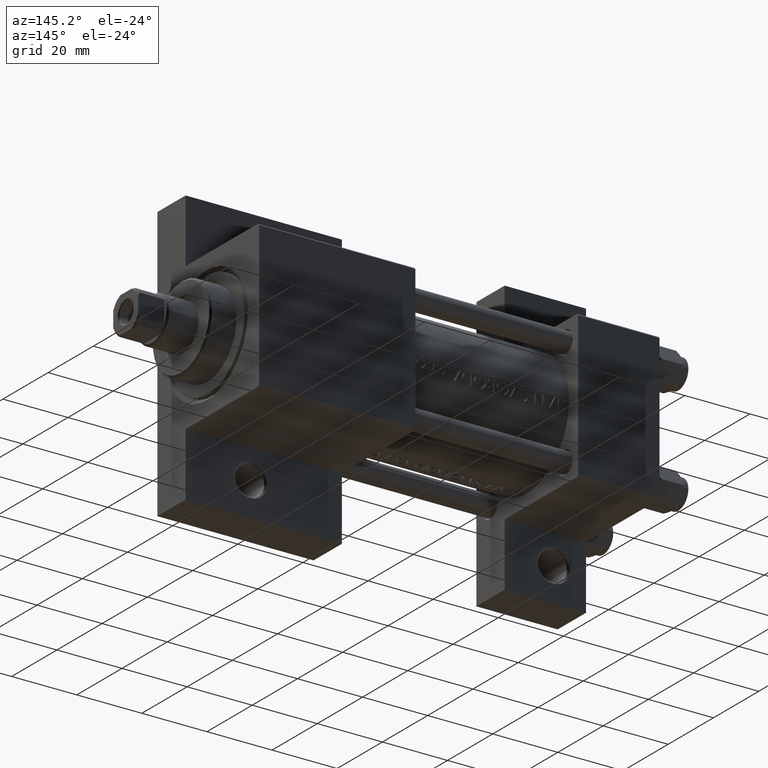
[diagram: clean part render]
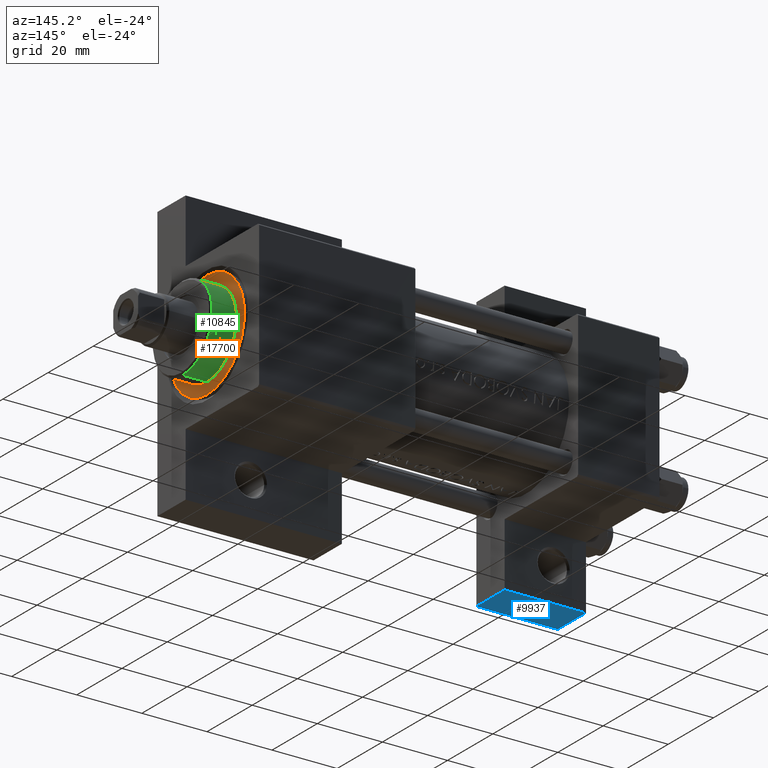
[diagram: same view with three faces highlighted in distinct colors, each labeled with its STEP entity id]
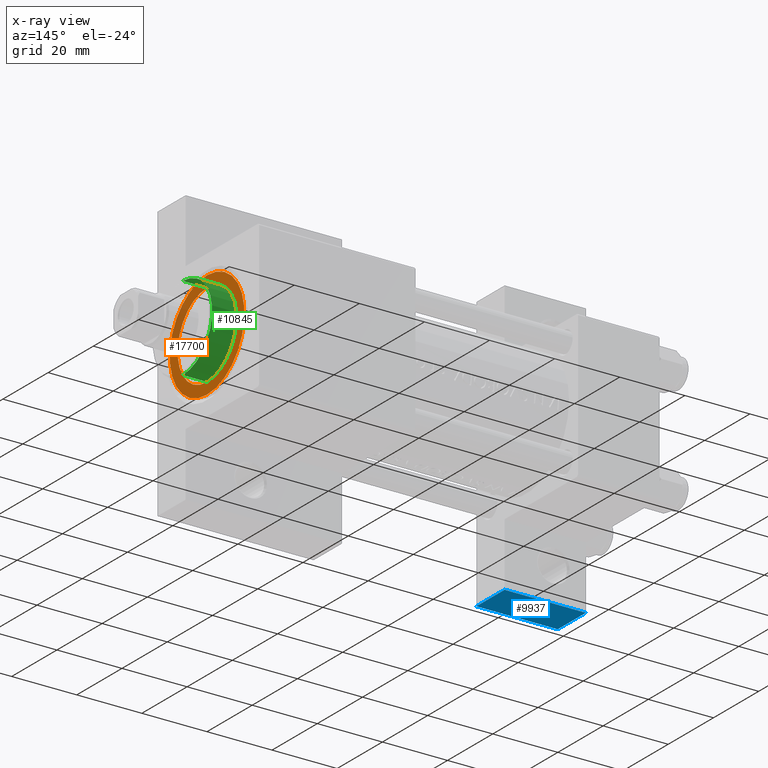
[diagram: x-ray of the same camera — body ghosted, the three highlighted faces saturated]
A machine part, auxiliary view with three faces highlighted in distinct colors.
The next image is the same camera in x-ray (body ghosted, the three faces saturated) — at least one of them is partly hidden behind the body in this view.
Their STEP definitions:

[orange] entity #17700 — the highlighted planar face has unit normal (1, 0, 0).
#1150 = CARTESIAN_POINT ( 'NONE',  ( -13.00000000000000178, 0.000000000000000000, 28.69999999999999929 ) ) ;
#1505 = CARTESIAN_POINT ( 'NONE',  ( -16.50000000000000000, 0.000000000000000000, 28.69999999999999929 ) ) ;
#1856 = AXIS2_PLACEMENT_3D ( 'NONE', #13982, #18089, #6072 ) ;
#2095 = EDGE_LOOP ( 'NONE', ( #40524, #15276 ) ) ;
#2459 = FACE_OUTER_BOUND ( 'NONE', #29035, .T. ) ;
#4267 = CARTESIAN_POINT ( 'NONE',  ( 16.50000000000000000, 2.020667218593133100E-15, 28.69999999999999929 ) ) ;
#6072 = DIRECTION ( 'NONE',  ( 1.000000000000000000, 0.000000000000000000, 0.000000000000000000 ) ) ;
#6154 = DIRECTION ( 'NONE',  ( 0.000000000000000000, 0.000000000000000000, 1.000000000000000000 ) ) ;
#7031 = CARTESIAN_POINT ( 'NONE',  ( 0.000000000000000000, 0.000000000000000000, 28.69999999999999929 ) ) ;
#7644 = CARTESIAN_POINT ( 'NONE',  ( 13.00000000000000178, 1.592040838891559293E-15, 28.69999999999999929 ) ) ;
#11308 = VERTEX_POINT ( 'NONE', #7644 ) ;
#13982 = CARTESIAN_POINT ( 'NONE',  ( 0.000000000000000000, 0.000000000000000000, 28.69999999999999929 ) ) ;
#15234 = VERTEX_POINT ( 'NONE', #4267 ) ;
#15276 = ORIENTED_EDGE ( 'NONE', *, *, #42522, .F. ) ;
#17700 = ADVANCED_FACE ( 'NONE', ( #42652, #2459 ), #41718, .T. ) ;
#18089 = DIRECTION ( 'NONE',  ( 0.000000000000000000, 0.000000000000000000, 1.000000000000000000 ) ) ;
#19069 = VERTEX_POINT ( 'NONE', #1150 ) ;
#19883 = AXIS2_PLACEMENT_3D ( 'NONE', #7031, #29162, #32057 ) ;
#20192 = AXIS2_PLACEMENT_3D ( 'NONE', #42476, #6154, #20617 ) ;
#20617 = DIRECTION ( 'NONE',  ( 1.000000000000000000, 0.000000000000000000, 0.000000000000000000 ) ) ;
#22569 = DIRECTION ( 'NONE',  ( 1.000000000000000000, 0.000000000000000000, 0.000000000000000000 ) ) ;
#24884 = CARTESIAN_POINT ( 'NONE',  ( 0.000000000000000000, 0.000000000000000000, 28.69999999999999929 ) ) ;
#26165 = DIRECTION ( 'NONE',  ( 0.000000000000000000, 0.000000000000000000, 1.000000000000000000 ) ) ;
#27870 = CIRCLE ( 'NONE', #20192, 16.50000000000000000 ) ;
#28806 = AXIS2_PLACEMENT_3D ( 'NONE', #24884, #32310, #39554 ) ;
#28849 = AXIS2_PLACEMENT_3D ( 'NONE', #44915, #26165, #22569 ) ;
#29035 = EDGE_LOOP ( 'NONE', ( #31573, #39041 ) ) ;
#29162 = DIRECTION ( 'NONE',  ( 0.000000000000000000, 0.000000000000000000, 1.000000000000000000 ) ) ;
#31064 = CIRCLE ( 'NONE', #1856, 13.00000000000000178 ) ;
#31573 = ORIENTED_EDGE ( 'NONE', *, *, #34707, .T. ) ;
#31906 = CIRCLE ( 'NONE', #28806, 16.50000000000000000 ) ;
#32057 = DIRECTION ( 'NONE',  ( 1.000000000000000000, 0.000000000000000000, -0.000000000000000000 ) ) ;
#32310 = DIRECTION ( 'NONE',  ( 0.000000000000000000, 0.000000000000000000, 1.000000000000000000 ) ) ;
#34707 = EDGE_CURVE ( 'NONE', #37630, #15234, #27870, .T. ) ;
#37630 = VERTEX_POINT ( 'NONE', #1505 ) ;
#39041 = ORIENTED_EDGE ( 'NONE', *, *, #44564, .T. ) ;
#39554 = DIRECTION ( 'NONE',  ( 1.000000000000000000, 0.000000000000000000, 0.000000000000000000 ) ) ;
#40524 = ORIENTED_EDGE ( 'NONE', *, *, #46266, .F. ) ;
#41718 = PLANE ( 'NONE',  #19883 ) ;
#42476 = CARTESIAN_POINT ( 'NONE',  ( 0.000000000000000000, 0.000000000000000000, 28.69999999999999929 ) ) ;
#42522 = EDGE_CURVE ( 'NONE', #11308, #19069, #31064, .T. ) ;
#42652 = FACE_BOUND ( 'NONE', #2095, .T. ) ;
#44564 = EDGE_CURVE ( 'NONE', #15234, #37630, #31906, .T. ) ;
#44915 = CARTESIAN_POINT ( 'NONE',  ( 0.000000000000000000, 0.000000000000000000, 28.69999999999999929 ) ) ;
#46266 = EDGE_CURVE ( 'NONE', #19069, #11308, #47284, .T. ) ;
#47284 = CIRCLE ( 'NONE', #28849, 13.00000000000000178 ) ;

[blue] entity #9937 — the highlighted planar face has unit normal (-0, -0, -1).
#71 = VERTEX_POINT ( 'NONE', #2267 ) ;
#311 = CARTESIAN_POINT ( 'NONE',  ( 25.00000000000001066, 42.00000000000001421, -9.999999999999994671 ) ) ;
#2267 = CARTESIAN_POINT ( 'NONE',  ( 1.025107321934354758E-14, 42.00000000000000711, -22.50000000000000711 ) ) ;
#2671 = CARTESIAN_POINT ( 'NONE',  ( 25.00000000000001066, 42.00000000000001421, -22.50000000000000711 ) ) ;
#3913 = CARTESIAN_POINT ( 'NONE',  ( 1.025107321934354758E-14, 42.00000000000000711, -9.999999999999994671 ) ) ;
#4426 = ORIENTED_EDGE ( 'NONE', *, *, #23913, .F. ) ;
#5036 = DIRECTION ( 'NONE',  ( -1.000000000000000000, -2.775557561562891844E-16, 0.000000000000000000 ) ) ;
#5311 = DIRECTION ( 'NONE',  ( 1.000000000000000000, 2.775557561562891351E-16, 0.000000000000000000 ) ) ;
#5935 = CARTESIAN_POINT ( 'NONE',  ( 1.025107321934354758E-14, 42.00000000000000711, -9.999999999999994671 ) ) ;
#7217 = VERTEX_POINT ( 'NONE', #3913 ) ;
#8921 = CARTESIAN_POINT ( 'NONE',  ( 1.025107321934354758E-14, 42.00000000000000711, -22.50000000000000711 ) ) ;
#9109 = DIRECTION ( 'NONE',  ( -2.775557561562891844E-16, 1.000000000000000000, -1.734723475976806848E-16 ) ) ;
#9539 = DIRECTION ( 'NONE',  ( -1.000000000000000000, -2.775557561562891844E-16, 0.000000000000000000 ) ) ;
#9937 = ADVANCED_FACE ( 'NONE', ( #12721 ), #23092, .T. ) ;
#12527 = LINE ( 'NONE', #8921, #38372 ) ;
#12721 = FACE_OUTER_BOUND ( 'NONE', #45803, .T. ) ;
#13242 = EDGE_CURVE ( 'NONE', #44656, #22933, #23736, .T. ) ;
#13567 = EDGE_CURVE ( 'NONE', #7217, #71, #37871, .T. ) ;
#14299 = ORIENTED_EDGE ( 'NONE', *, *, #13242, .T. ) ;
#15733 = DIRECTION ( 'NONE',  ( 0.000000000000000000, -1.734723475976806848E-16, -1.000000000000000000 ) ) ;
#16304 = EDGE_CURVE ( 'NONE', #44656, #7217, #30966, .T. ) ;
#17122 = ORIENTED_EDGE ( 'NONE', *, *, #13567, .F. ) ;
#17325 = AXIS2_PLACEMENT_3D ( 'NONE', #34148, #9109, #5036 ) ;
#19113 = CARTESIAN_POINT ( 'NONE',  ( 1.025107321934354758E-14, 42.00000000000001421, 21.70567772497539138 ) ) ;
#20604 = VECTOR ( 'NONE', #9539, 1000.000000000000000 ) ;
#22933 = VERTEX_POINT ( 'NONE', #2671 ) ;
#23092 = PLANE ( 'NONE',  #17325 ) ;
#23736 = LINE ( 'NONE', #34320, #45815 ) ;
#23913 = EDGE_CURVE ( 'NONE', #71, #22933, #12527, .T. ) ;
#27460 = VECTOR ( 'NONE', #15733, 1000.000000000000000 ) ;
#30966 = LINE ( 'NONE', #5935, #20604 ) ;
#31166 = DIRECTION ( 'NONE',  ( 0.000000000000000000, -1.734723475976806848E-16, -1.000000000000000000 ) ) ;
#34148 = CARTESIAN_POINT ( 'NONE',  ( 1.025107321934354758E-14, 42.00000000000001421, 21.70567772497539138 ) ) ;
#34320 = CARTESIAN_POINT ( 'NONE',  ( 25.00000000000001066, 42.00000000000002132, 21.70567772497539138 ) ) ;
#37871 = LINE ( 'NONE', #19113, #27460 ) ;
#38372 = VECTOR ( 'NONE', #5311, 1000.000000000000000 ) ;
#44656 = VERTEX_POINT ( 'NONE', #311 ) ;
#45579 = ORIENTED_EDGE ( 'NONE', *, *, #16304, .F. ) ;
#45803 = EDGE_LOOP ( 'NONE', ( #45579, #14299, #4426, #17122 ) ) ;
#45815 = VECTOR ( 'NONE', #31166, 1000.000000000000000 ) ;

[green] entity #10845 — the highlighted cylindrical surface (partial cylindrical patch) has radius 13 mm, axis along (-1, -0, 0).
#171 = CARTESIAN_POINT ( 'NONE',  ( 13.00000000000000178, 1.592040838891559293E-15, 36.20000000000000995 ) ) ;
#1150 = CARTESIAN_POINT ( 'NONE',  ( -13.00000000000000178, 0.000000000000000000, 28.69999999999999929 ) ) ;
#1856 = AXIS2_PLACEMENT_3D ( 'NONE', #13982, #18089, #6072 ) ;
#3331 = FACE_OUTER_BOUND ( 'NONE', #9466, .T. ) ;
#4977 = ORIENTED_EDGE ( 'NONE', *, *, #42522, .T. ) ;
#5053 = CARTESIAN_POINT ( 'NONE',  ( -13.00000000000000178, 0.000000000000000000, 36.20000000000000995 ) ) ;
#6072 = DIRECTION ( 'NONE',  ( 1.000000000000000000, 0.000000000000000000, 0.000000000000000000 ) ) ;
#6288 = EDGE_CURVE ( 'NONE', #30640, #19069, #44728, .T. ) ;
#7644 = CARTESIAN_POINT ( 'NONE',  ( 13.00000000000000178, 1.592040838891559293E-15, 28.69999999999999929 ) ) ;
#7873 = VECTOR ( 'NONE', #24342, 1000.000000000000000 ) ;
#9466 = EDGE_LOOP ( 'NONE', ( #30375, #39534, #4977, #42964 ) ) ;
#10404 = AXIS2_PLACEMENT_3D ( 'NONE', #14635, #47591, #18026 ) ;
#10845 = ADVANCED_FACE ( 'NONE', ( #3331 ), #36546, .T. ) ;
#11308 = VERTEX_POINT ( 'NONE', #7644 ) ;
#13982 = CARTESIAN_POINT ( 'NONE',  ( 0.000000000000000000, 0.000000000000000000, 28.69999999999999929 ) ) ;
#14635 = CARTESIAN_POINT ( 'NONE',  ( 0.000000000000000000, 0.000000000000000000, 36.69999999999999574 ) ) ;
#18026 = DIRECTION ( 'NONE',  ( -1.000000000000000000, 0.000000000000000000, 0.000000000000000000 ) ) ;
#18089 = DIRECTION ( 'NONE',  ( 0.000000000000000000, 0.000000000000000000, 1.000000000000000000 ) ) ;
#18847 = EDGE_CURVE ( 'NONE', #30640, #41050, #22095, .T. ) ;
#19069 = VERTEX_POINT ( 'NONE', #1150 ) ;
#22095 = CIRCLE ( 'NONE', #30534, 13.00000000000000178 ) ;
#24342 = DIRECTION ( 'NONE',  ( -0.000000000000000000, -0.000000000000000000, -1.000000000000000000 ) ) ;
#27413 = CARTESIAN_POINT ( 'NONE',  ( -13.00000000000000178, 0.000000000000000000, 36.69999999999999574 ) ) ;
#27701 = LINE ( 'NONE', #38773, #7873 ) ;
#30375 = ORIENTED_EDGE ( 'NONE', *, *, #18847, .T. ) ;
#30534 = AXIS2_PLACEMENT_3D ( 'NONE', #32227, #47616, #47140 ) ;
#30640 = VERTEX_POINT ( 'NONE', #5053 ) ;
#31064 = CIRCLE ( 'NONE', #1856, 13.00000000000000178 ) ;
#32227 = CARTESIAN_POINT ( 'NONE',  ( 0.000000000000000000, 0.000000000000000000, 36.20000000000000995 ) ) ;
#34544 = EDGE_CURVE ( 'NONE', #41050, #11308, #27701, .T. ) ;
#36546 = CYLINDRICAL_SURFACE ( 'NONE', #10404, 13.00000000000000178 ) ;
#38773 = CARTESIAN_POINT ( 'NONE',  ( 13.00000000000000178, 1.592040838891559293E-15, 36.69999999999999574 ) ) ;
#39534 = ORIENTED_EDGE ( 'NONE', *, *, #34544, .T. ) ;
#41019 = VECTOR ( 'NONE', #42082, 1000.000000000000000 ) ;
#41050 = VERTEX_POINT ( 'NONE', #171 ) ;
#42082 = DIRECTION ( 'NONE',  ( -0.000000000000000000, -0.000000000000000000, -1.000000000000000000 ) ) ;
#42522 = EDGE_CURVE ( 'NONE', #11308, #19069, #31064, .T. ) ;
#42964 = ORIENTED_EDGE ( 'NONE', *, *, #6288, .F. ) ;
#44728 = LINE ( 'NONE', #27413, #41019 ) ;
#47140 = DIRECTION ( 'NONE',  ( 1.000000000000000000, 0.000000000000000000, 0.000000000000000000 ) ) ;
#47591 = DIRECTION ( 'NONE',  ( -0.000000000000000000, -0.000000000000000000, -1.000000000000000000 ) ) ;
#47616 = DIRECTION ( 'NONE',  ( 0.000000000000000000, 0.000000000000000000, -1.000000000000000000 ) ) ;